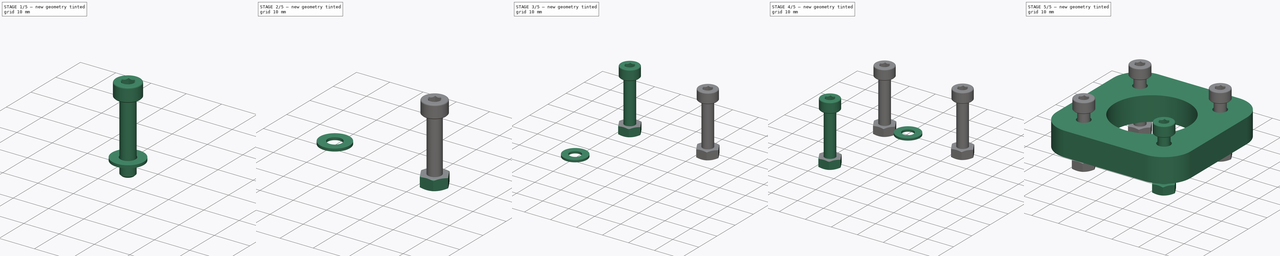
[diagram: build sequence overview — one tinted view per stage of 5, left to right]
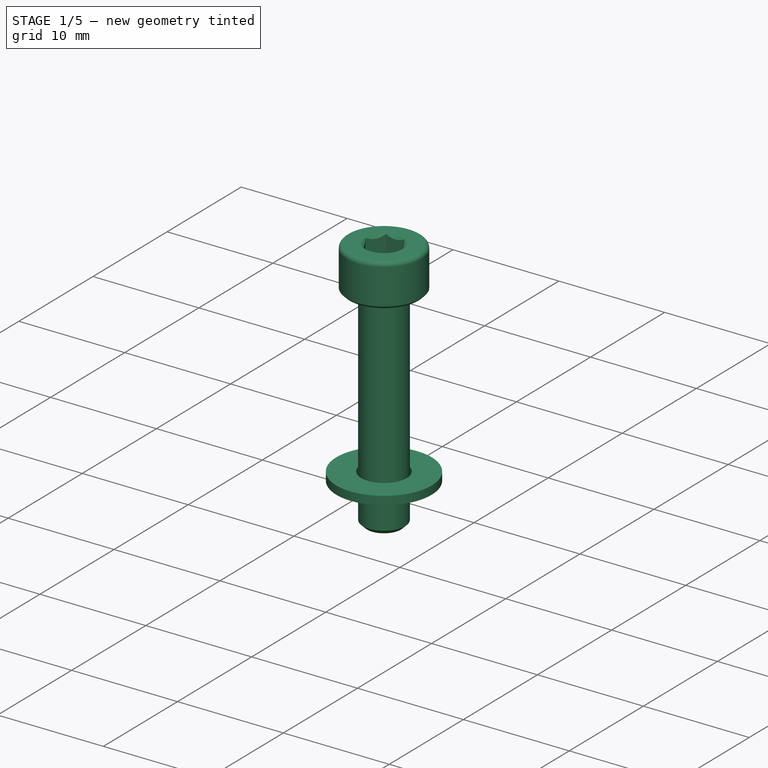
[diagram: stage 1 of 5 — iso view after this stage's code; geometry added in this stage tinted green]
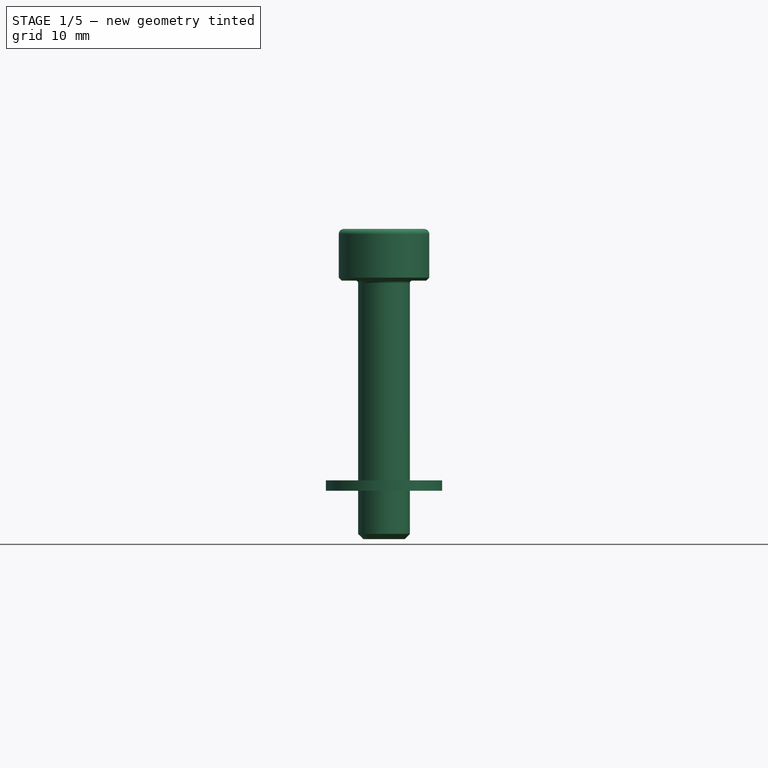
[diagram: stage 1 of 5 — front view after this stage's code; geometry added in this stage tinted green]
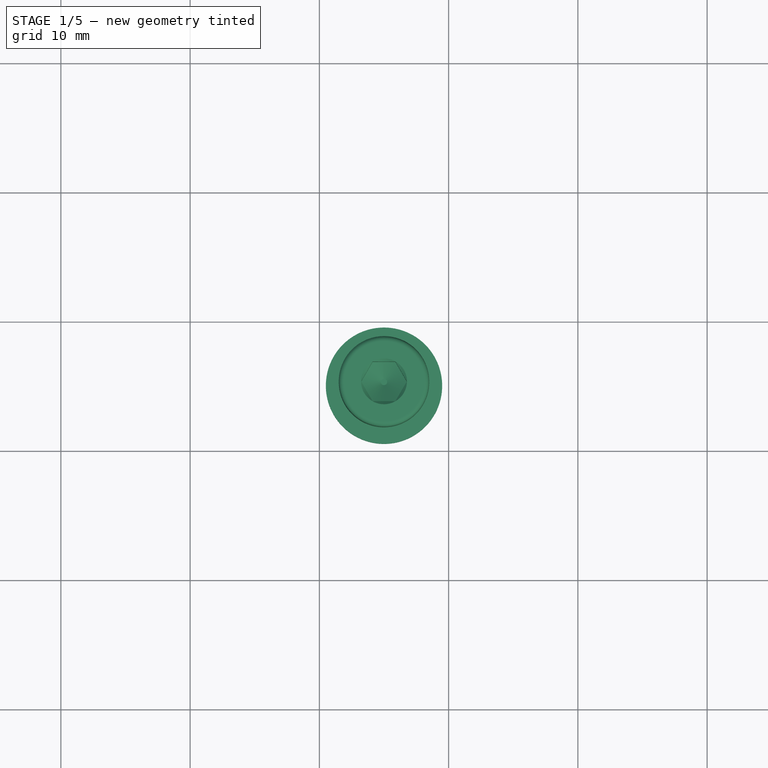
[diagram: stage 1 of 5 — top view after this stage's code; geometry added in this stage tinted green]
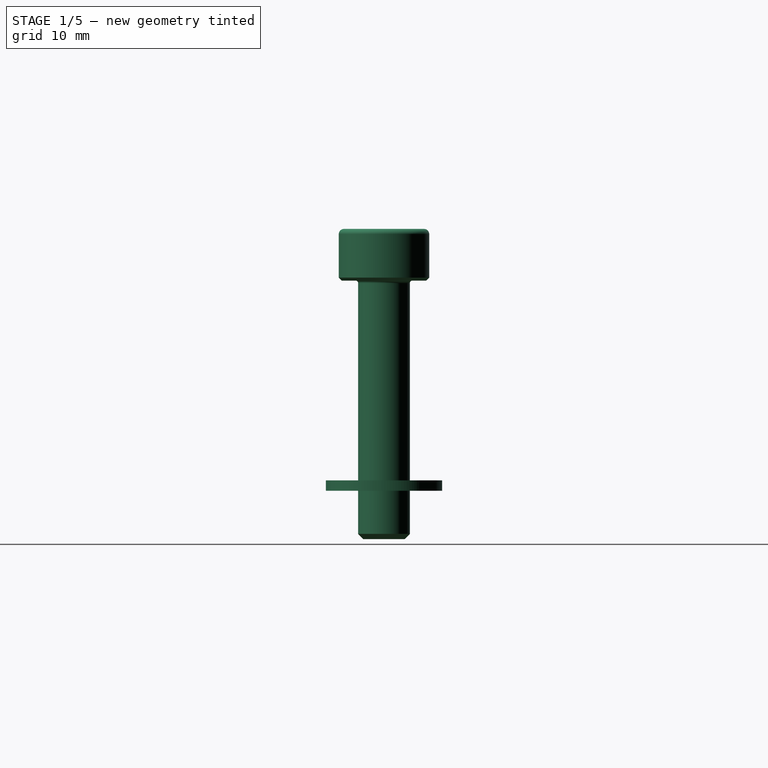
[diagram: stage 1 of 5 — right view after this stage's code; geometry added in this stage tinted green]
FCSTD DOCUMENT  (FreeCAD 0.20R29177 +426 (Git))
Label: RotationDriverMountingSpacer
License: All rights reserved
LicenseURL: http://en.wikipedia.org/wiki/All_rights_reserved
objects: Part::FeaturePython×16, App::DocumentObjectGroup×8, Sketcher::SketchObject×2, PartDesign::CoordinateSystem×1, App::FeaturePython×1, PartDesign::Pad×1, PartDesign::Hole×1, PartDesign::Body×1, App::Part×1
note: 24 computed .brp shape members not serialized (recipe doc carries the construction recipe); baked Part::Feature solids carry a one-line shape summary decoded from their .brp
EXTERNAL_REF file=Params.FCStd obj=Spreadsheet
EXTERNAL_REF file=Stepper17BracketFlat.FCStd obj=Pad

FEATURE [App::DocumentObjectGroup] Parts
FEATURE [PartDesign::CoordinateSystem] LCS_Origin
  AttacherType = Attacher::AttachEngine3D
  MapMode = 2
  Support = -> [X_Axis]
FEATURE [App::FeaturePython] Variables  # WARN: FeaturePython — macro-defined, semantics opaque (R4)
  BracketHoleSpacing = 30
  Type = App::PropertyContainer
FEATURE [App::DocumentObjectGroup] Constraints
FEATURE [App::DocumentObjectGroup] Configurations
FEATURE [Sketcher::SketchObject] Sketch
  FullyConstrained = true
  MapMode = 5
  Support = -> [XY_Plane001]
  expr: Constraints[26] = <<Variables>>.BracketHoleSpacing
  sketch-geometry (24):
    g0: LineSegment StartX=-15 StartY=-15 StartZ=0 EndX=-15 EndY=15 EndZ=0
    g1: LineSegment StartX=-15 StartY=15 StartZ=0 EndX=15 EndY=15 EndZ=0
    g2: LineSegment StartX=15 StartY=15 StartZ=0 EndX=15 EndY=-15 EndZ=0
    g3: LineSegment StartX=15 StartY=-15 StartZ=0 EndX=-15 EndY=-15 EndZ=0
    g4: GeomPoint X=0 Y=0 Z=0
    g5: ArcOfCircle CenterX=15 CenterY=15 CenterZ=0 NormalX=0 NormalY=0 NormalZ=1 AngleXU=0 Radius=2.15 StartAngle=0 EndAngle=3.14159
    g6: ArcOfCircle CenterX=15 CenterY=-15 CenterZ=0 NormalX=0 NormalY=0 NormalZ=1 AngleXU=0 Radius=2.15 StartAngle=3.14159 EndAngle=6.28319
    g7: LineSegment StartX=12.85 StartY=15 StartZ=0 EndX=12.85 EndY=-15 EndZ=0
    g8: LineSegment StartX=17.15 StartY=-15 StartZ=0 EndX=17.15 EndY=15 EndZ=0
    g9: ArcOfCircle CenterX=-15 CenterY=15 CenterZ=0 NormalX=0 NormalY=0 NormalZ=1 AngleXU=0 Radius=2.15 StartAngle=0 EndAngle=3.14159
    g10: ArcOfCircle CenterX=-15 CenterY=-15 CenterZ=0 NormalX=0 NormalY=0 NormalZ=1 AngleXU=0 Radius=2.15 StartAngle=3.14159 EndAngle=6.28319
    g11: LineSegment StartX=-17.15 StartY=15 StartZ=0 EndX=-17.15 EndY=-15 EndZ=0
    g12: LineSegment StartX=-12.85 StartY=-15 StartZ=0 EndX=-12.85 EndY=15 EndZ=0
    g13: ArcOfCircle CenterX=-15 CenterY=15 CenterZ=0 NormalX=0 NormalY=0 NormalZ=1 AngleXU=0 Radius=10 StartAngle=1.5708 EndAngle=3.14159
    g14: LineSegment StartX=-15 StartY=25 StartZ=0 EndX=15 EndY=25 EndZ=0
    g15: ArcOfCircle CenterX=15 CenterY=15 CenterZ=0 NormalX=0 NormalY=0 NormalZ=1 AngleXU=0 Radius=10 StartAngle=1e-16 EndAngle=1.5708
    g16: LineSegment StartX=25 StartY=15 StartZ=0 EndX=25 EndY=-15 EndZ=0
    g17: ArcOfCircle CenterX=15 CenterY=-15 CenterZ=0 NormalX=0 NormalY=0 NormalZ=1 AngleXU=0 Radius=10 StartAngle=4.71239 EndAngle=6.28319
    g18: LineSegment StartX=15 StartY=-25 StartZ=0 EndX=-15 EndY=-25 EndZ=0
    g19: ArcOfCircle CenterX=-15 CenterY=-15 CenterZ=0 NormalX=0 NormalY=0 NormalZ=1 AngleXU=0 Radius=10 StartAngle=3.14159 EndAngle=4.71239
    g20: LineSegment StartX=-25 StartY=-15 StartZ=0 EndX=-25 EndY=15 EndZ=0
    g21: GeomPoint X=-25 Y=25 Z=0
    g22: GeomPoint X=25 Y=-25 Z=0
    g23: Circle CenterX=0 CenterY=0 CenterZ=0 NormalX=0 NormalY=0 NormalZ=1 AngleXU=0 Radius=14
  constraints (52):
    c: Coincident(g0,g1)
    c: Coincident(g1,g2)
    c: Coincident(g2,g3)
    c: Coincident(g3,g0)
    c: Horizontal(g1)
    c: Horizontal(g3)
    c: Vertical(g0)
    c: Vertical(g2)
    c: Symmetric(g1,g0,g4)
    c: Coincident(g4,g-1)
    c: Tangent(g5,g7) = -1.5708
    c: Tangent(g7,g6) = -1.5708
    c: Tangent(g6,g8) = -1.5708
    c: Tangent(g8,g5) = -1.5708
    c: Equal(g5,g6)
    c: Coincident(g5,g1)
    c: Coincident(g6,g2)
    c: Tangent(g9,g11) = -1.5708
    c: Tangent(g11,g10) = -1.5708
    c: Tangent(g10,g12) = -1.5708
    c: Tangent(g12,g9) = -1.5708
    c: Equal(g9,g10)
    c: Coincident(g9,g0)
    c: Coincident(g10,g0)
    c: Equal(g5,g9)
    c: Diameter(g5) = 4.3
    c: DistanceX(g1,g1) = 30
    c: Equal(g2,g1)
    c: Tangent(g13,g14) = 1.5708
    c: Tangent(g14,g15) = 1.5708
    c: Tangent(g15,g16) = 1.5708
    c: Tangent(g16,g17) = 1.5708
    c: Tangent(g17,g18) = 1.5708
    c: Tangent(g18,g19) = 1.5708
    c: Tangent(g19,g20) = 1.5708
    c: Tangent(g20,g13) = 1.5708
    c: Horizontal(g14)
    c: Horizontal(g18)
    c: Vertical(g16)
    c: Vertical(g20)
    c: Equal(g13,g15)
    c: Equal(g15,g17)
    c: Equal(g17,g19)
    c: PointOnObject(g21,g14)
    c: PointOnObject(g21,g20)
    c: PointOnObject(g22,g16)
    c: PointOnObject(g22,g18)
    c: Coincident(g13,g9)
    c: Coincident(g17,g6)
    c: DistanceX(g13,g15) = 50
    c: Coincident(g23,g4)
    c: Diameter(g23) = 28
FEATURE [PartDesign::Pad] Pad
  Direction = (0,0,1)
  Length = 9
  Length2 = 10
  Profile = -> Sketch
  ReferenceAxis = -> Sketch [N_Axis]
  Type = 0
FEATURE [Part::FeaturePython] Screw003  label="M4x20-Screw012"  # Fasteners workbench fastener (typed FeaturePython)
  Placement = pos=(15,15,12.456) rot=(0,0,1;0rad)
  baseObject = -> Washer006 [Edge1]
  diameter = 5
  invert = false
  leftHanded = false
  length = 6
  lengthCustom = 20
  matchOuter = true
  offset = 0
  thread = false
  type = 34
FEATURE [Part::FeaturePython] Washer006  label="M4-Washer027"  # Fasteners workbench fastener (typed FeaturePython)
  Placement = pos=(15,15,11.656) rot=(0,0,1;0rad)
  baseObject = -> Sketch001 [Edge1]
  diameter = 5
  invert = false
  matchOuter = true
  offset = 11.656
  type = 3
  expr: offset = <<Pad>>.Length + <<Params>>#<<Params>>.SheetMetalThickness * 1mm
FEATURE [Part::FeaturePython] Washer007  label="M4-Washer028"  # Fasteners workbench fastener (typed FeaturePython)
  Placement = pos=(15,15,-3) rot=(1,0,0;3.14159rad)
  baseObject = -> Washer006 [Edge3]
  diameter = 5
  invert = true
  matchOuter = true
  offset = 14.656
  type = 3
  expr: offset = <<Pad>>.Length + <<Params>>#<<Params>>.SheetMetalThickness * 1mm + <<Stepper17BracketFlat>>#<<Pad>>.Length
FEATURE [App::DocumentObjectGroup] Hole004
  Group = -> [Screw003,Washer006,Washer007,Nut003]
FEATURE [App::DocumentObjectGroup] Fasteners
  Group = -> [Hole1,Hole002,Hole003,Hole004]
FEATURE [App::Part] Assembly
  AssemblyType = Part::Link
  Group = -> [LCS_Origin,Variables,Constraints,Configurations,Body,Fasteners,Washer,Screw,Washer001,Nut,Hole1,Washer002,Screw001,Washer003,Nut001,Hole002,Washer005,Nut002,Screw002,Washer004,Hole003,Washer007,Screw003,Nut003,Washer006,Hole004]
  Origin = -> Origin
  Type = Assembly
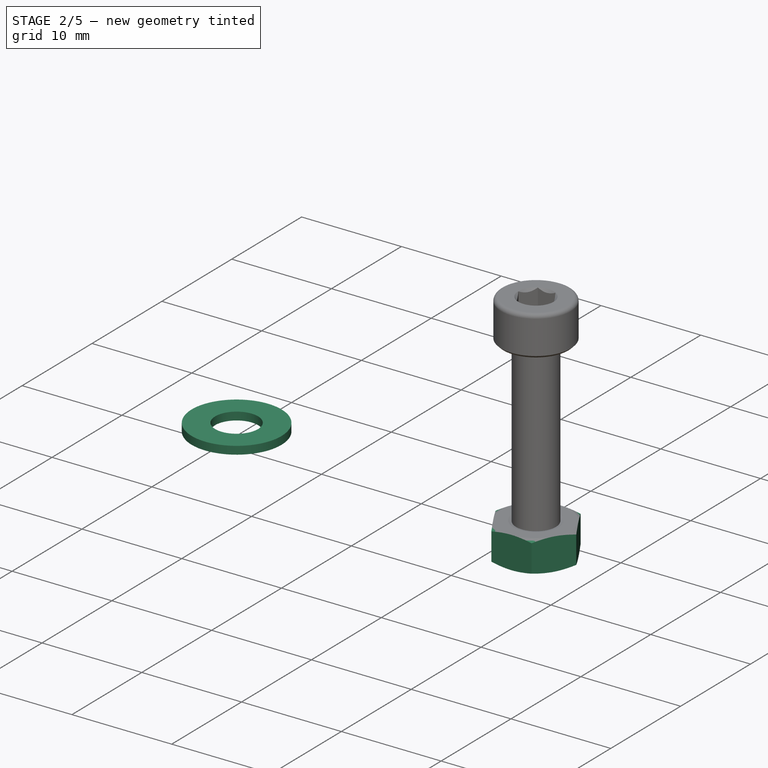
[diagram: stage 2 of 5 — iso view after this stage's code; geometry added in this stage tinted green]
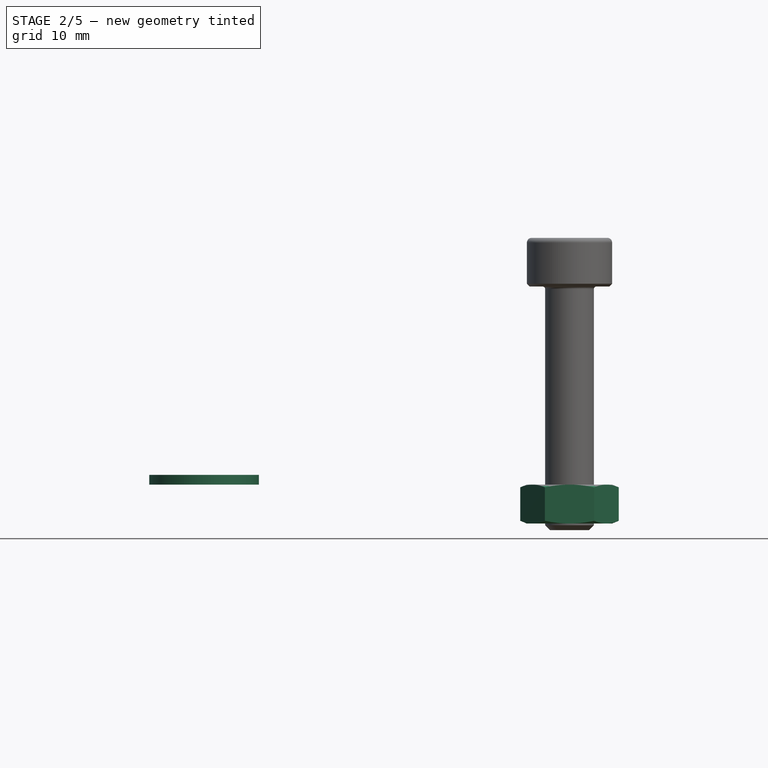
[diagram: stage 2 of 5 — front view after this stage's code; geometry added in this stage tinted green]
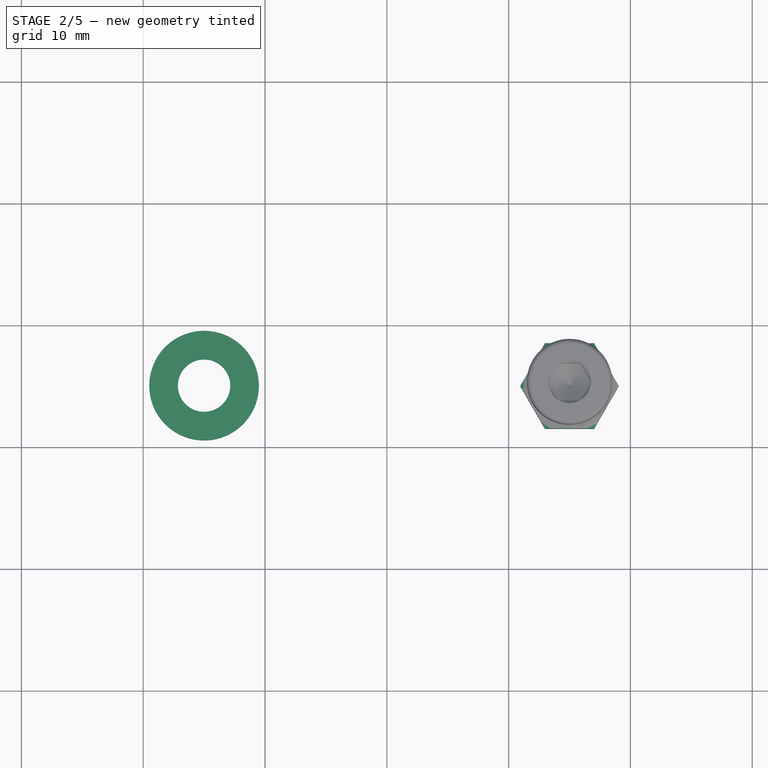
[diagram: stage 2 of 5 — top view after this stage's code; geometry added in this stage tinted green]
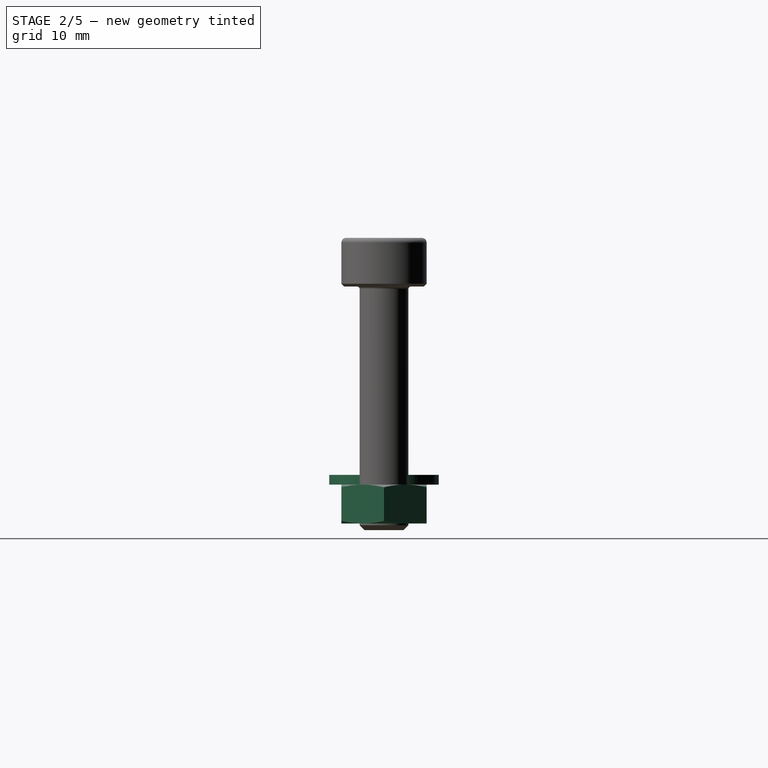
[diagram: stage 2 of 5 — right view after this stage's code; geometry added in this stage tinted green]
FEATURE [Part::FeaturePython] Washer004  label="M4-Washer025"  # Fasteners workbench fastener (typed FeaturePython)
  Placement = pos=(-15,15,11.656) rot=(0,0,1;0rad)
  baseObject = -> Sketch001 [Edge3]
  diameter = 5
  invert = false
  matchOuter = true
  offset = 11.656
  type = 3
  expr: offset = <<Pad>>.Length + <<Params>>#<<Params>>.SheetMetalThickness * 1mm
FEATURE [Part::FeaturePython] Washer005  label="M4-Washer026"  # Fasteners workbench fastener (typed FeaturePython)
  Placement = pos=(-15,15,-3) rot=(1,0,0;3.14159rad)
  baseObject = -> Washer004 [Edge3]
  diameter = 5
  invert = true
  matchOuter = true
  offset = 14.656
  type = 3
  expr: offset = <<Pad>>.Length + <<Params>>#<<Params>>.SheetMetalThickness * 1mm + <<Stepper17BracketFlat>>#<<Pad>>.Length
FEATURE [App::DocumentObjectGroup] Hole003
  Group = -> [Screw002,Washer004,Washer005,Nut002]
FEATURE [Part::FeaturePython] Nut003  label="M4-Nut012"  # Fasteners workbench fastener (typed FeaturePython)
  Placement = pos=(15,15,-3.8) rot=(1,0,0;3.14159rad)
  baseObject = -> Washer007 [Edge1]
  diameter = 6
  invert = false
  leftHanded = false
  matchOuter = true
  offset = 0
  thread = false
  type = 7
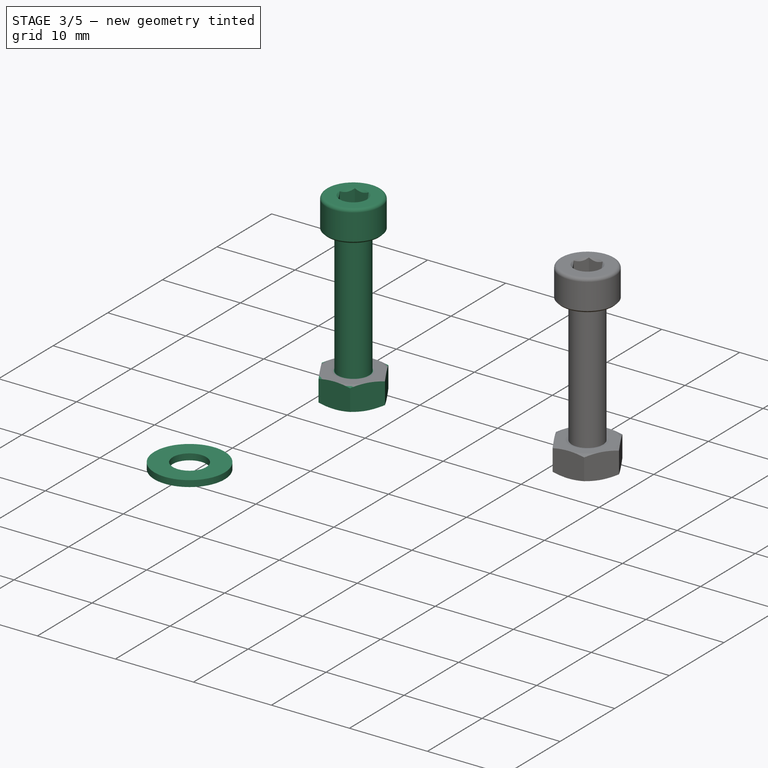
[diagram: stage 3 of 5 — iso view after this stage's code; geometry added in this stage tinted green]
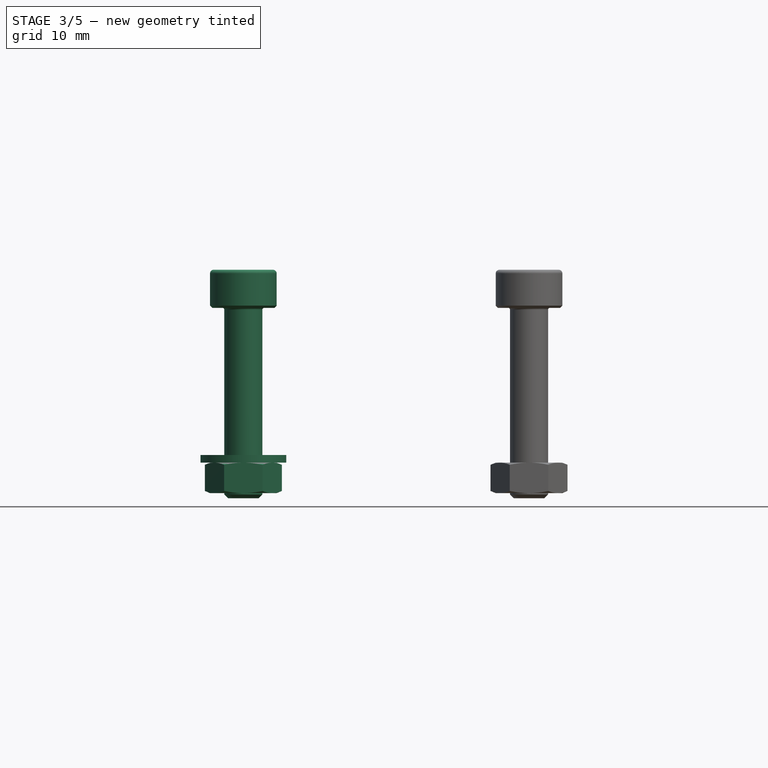
[diagram: stage 3 of 5 — front view after this stage's code; geometry added in this stage tinted green]
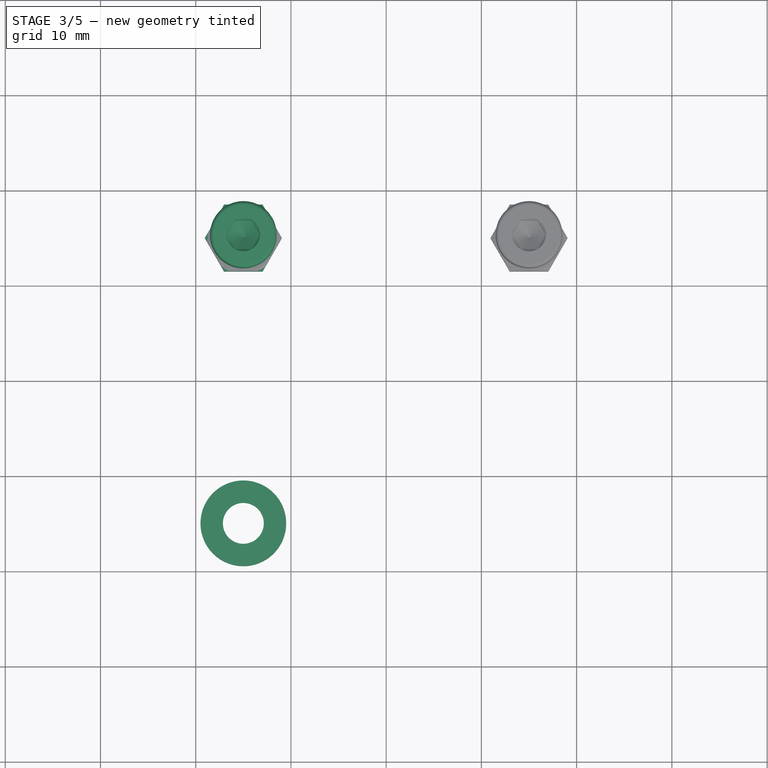
[diagram: stage 3 of 5 — top view after this stage's code; geometry added in this stage tinted green]
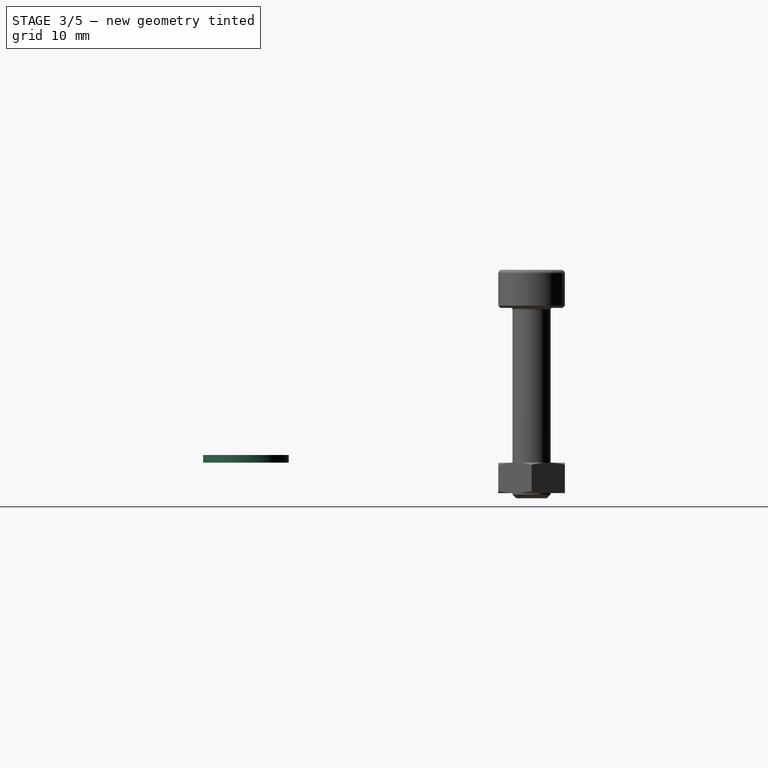
[diagram: stage 3 of 5 — right view after this stage's code; geometry added in this stage tinted green]
FEATURE [Part::FeaturePython] Washer002  label="M4-Washer023"  # Fasteners workbench fastener (typed FeaturePython)
  Placement = pos=(-15,-15,11.656) rot=(0,0,1;0rad)
  baseObject = -> Sketch001 [Edge4]
  diameter = 5
  invert = false
  matchOuter = true
  offset = 11.656
  type = 3
  expr: offset = <<Pad>>.Length + <<Params>>#<<Params>>.SheetMetalThickness * 1mm
FEATURE [Part::FeaturePython] Washer003  label="M4-Washer024"  # Fasteners workbench fastener (typed FeaturePython)
  Placement = pos=(-15,-15,-3) rot=(1,0,0;3.14159rad)
  baseObject = -> Washer002 [Edge3]
  diameter = 5
  invert = true
  matchOuter = true
  offset = 14.656
  type = 3
  expr: offset = <<Pad>>.Length + <<Params>>#<<Params>>.SheetMetalThickness * 1mm + <<Stepper17BracketFlat>>#<<Pad>>.Length
FEATURE [App::DocumentObjectGroup] Hole002
  Group = -> [Screw001,Washer002,Washer003,Nut001]
FEATURE [Part::FeaturePython] Nut002  label="M4-Nut011"  # Fasteners workbench fastener (typed FeaturePython)
  Placement = pos=(-15,15,-3.8) rot=(1,0,0;3.14159rad)
  baseObject = -> Washer005 [Edge1]
  diameter = 6
  invert = false
  leftHanded = false
  matchOuter = true
  offset = 0
  thread = false
  type = 7
FEATURE [Part::FeaturePython] Screw002  label="M4x20-Screw011"  # Fasteners workbench fastener (typed FeaturePython)
  Placement = pos=(-15,15,12.456) rot=(0,0,1;0rad)
  baseObject = -> Washer004 [Edge1]
  diameter = 5
  invert = false
  leftHanded = false
  length = 6
  lengthCustom = 20
  matchOuter = true
  offset = 0
  thread = false
  type = 34
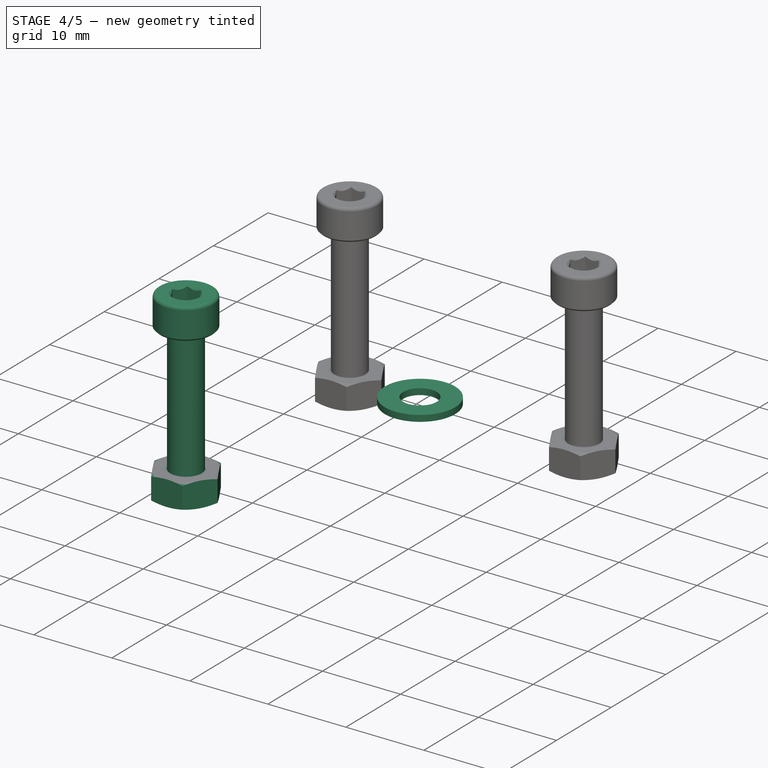
[diagram: stage 4 of 5 — iso view after this stage's code; geometry added in this stage tinted green]
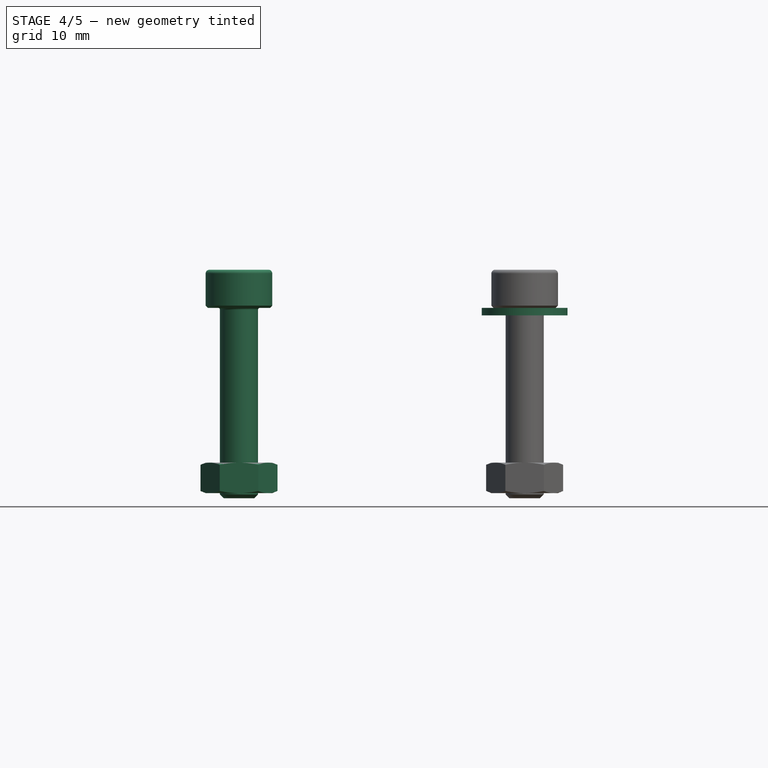
[diagram: stage 4 of 5 — front view after this stage's code; geometry added in this stage tinted green]
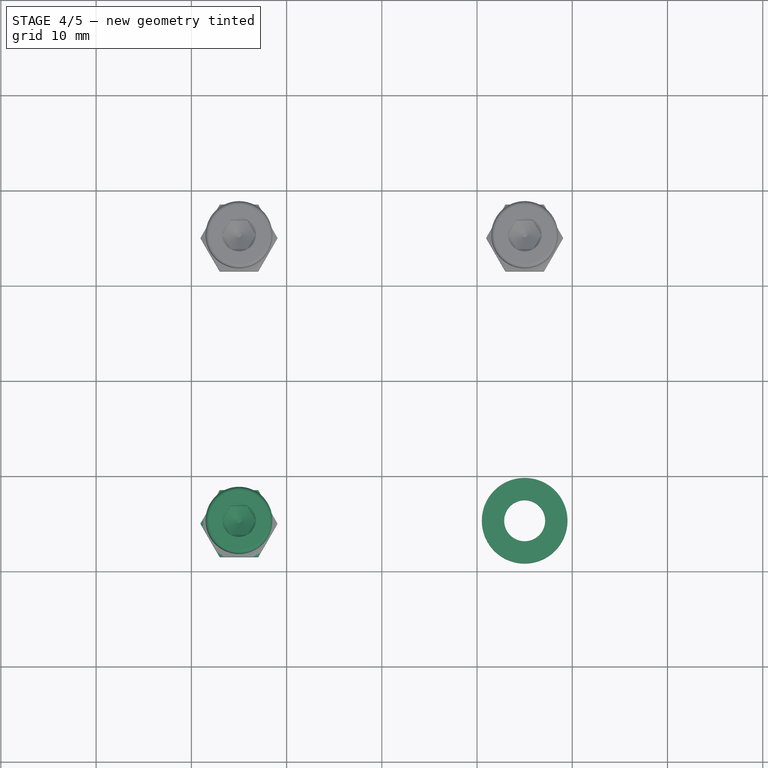
[diagram: stage 4 of 5 — top view after this stage's code; geometry added in this stage tinted green]
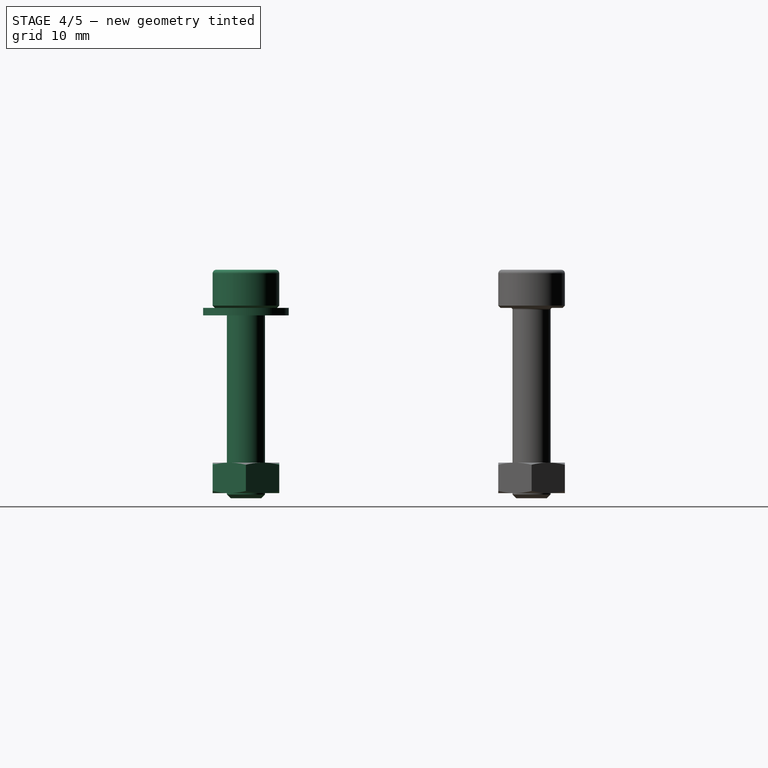
[diagram: stage 4 of 5 — right view after this stage's code; geometry added in this stage tinted green]
FEATURE [PartDesign::Body] Body
  Group = -> [Sketch,Pad,Sketch001,Hole]
  Origin = -> Origin001
  Tip = -> Hole
FEATURE [Part::FeaturePython] Washer  label="M4-Washer"  # Fasteners workbench fastener (typed FeaturePython)
  Placement = pos=(15,-15,11.656) rot=(0,0,1;0rad)
  baseObject = -> Sketch001 [Edge2]
  diameter = 5
  invert = false
  matchOuter = true
  offset = 11.656
  type = 3
  expr: offset = <<Pad>>.Length + <<Params>>#<<Params>>.SheetMetalThickness * 1mm
FEATURE [App::DocumentObjectGroup] Hole1
  Group = -> [Screw,Washer,Washer001,Nut]
FEATURE [Part::FeaturePython] Nut001  label="M4-Nut010"  # Fasteners workbench fastener (typed FeaturePython)
  Placement = pos=(-15,-15,-3.8) rot=(1,0,0;3.14159rad)
  baseObject = -> Washer003 [Edge1]
  diameter = 6
  invert = false
  leftHanded = false
  matchOuter = true
  offset = 0
  thread = false
  type = 7
FEATURE [Part::FeaturePython] Screw001  label="M4x20-Screw010"  # Fasteners workbench fastener (typed FeaturePython)
  Placement = pos=(-15,-15,12.456) rot=(0,0,1;0rad)
  baseObject = -> Washer002 [Edge1]
  diameter = 5
  invert = false
  leftHanded = false
  length = 6
  lengthCustom = 20
  matchOuter = true
  offset = 0
  thread = false
  type = 34
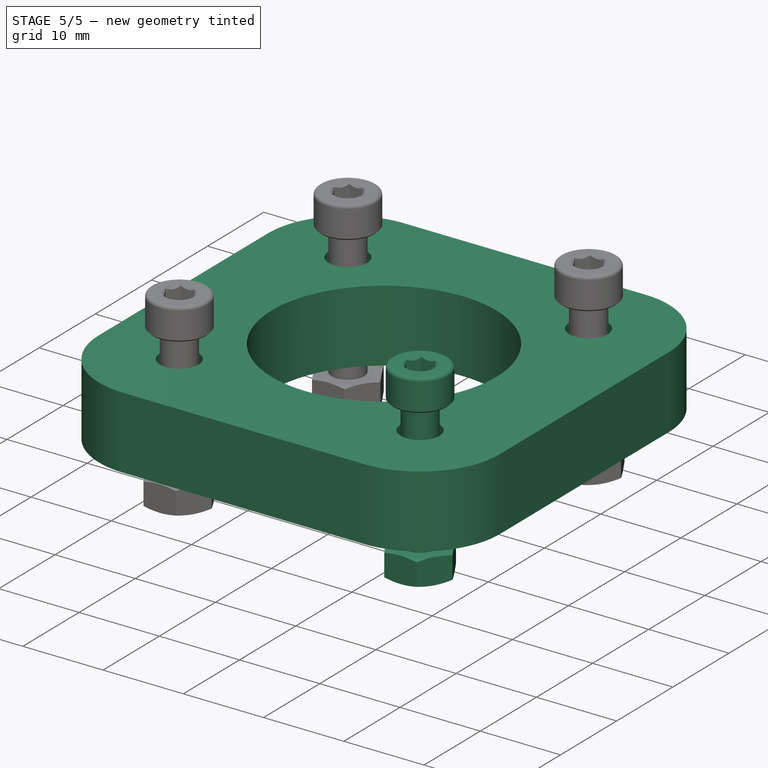
[diagram: stage 5 of 5 — iso view after this stage's code; geometry added in this stage tinted green]
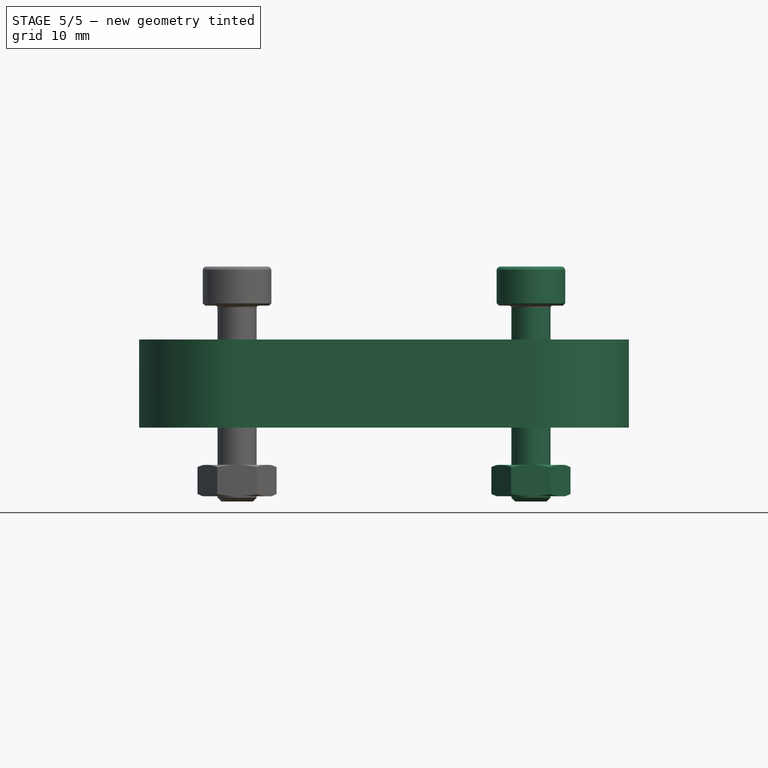
[diagram: stage 5 of 5 — front view after this stage's code; geometry added in this stage tinted green]
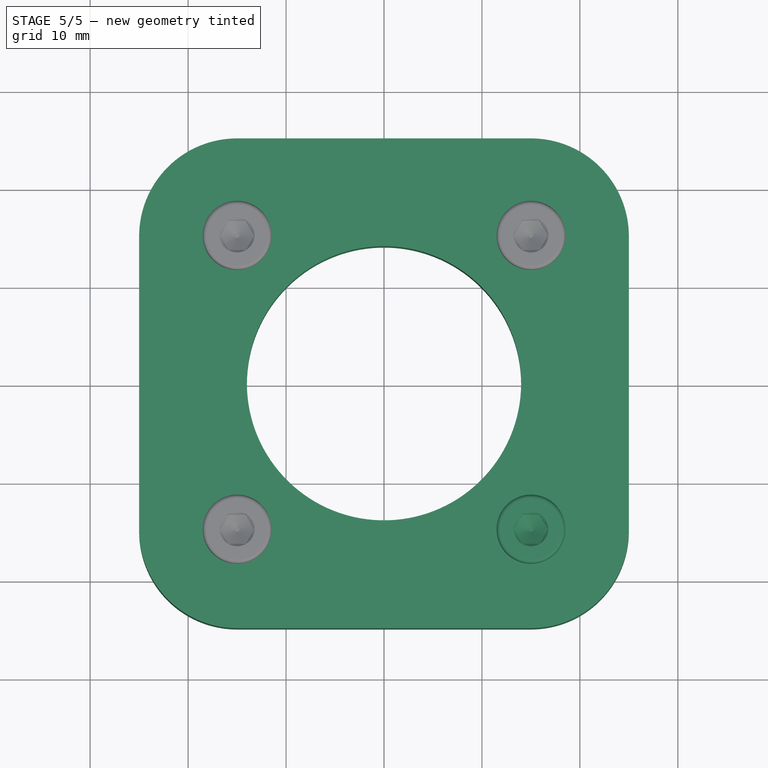
[diagram: stage 5 of 5 — top view after this stage's code; geometry added in this stage tinted green]
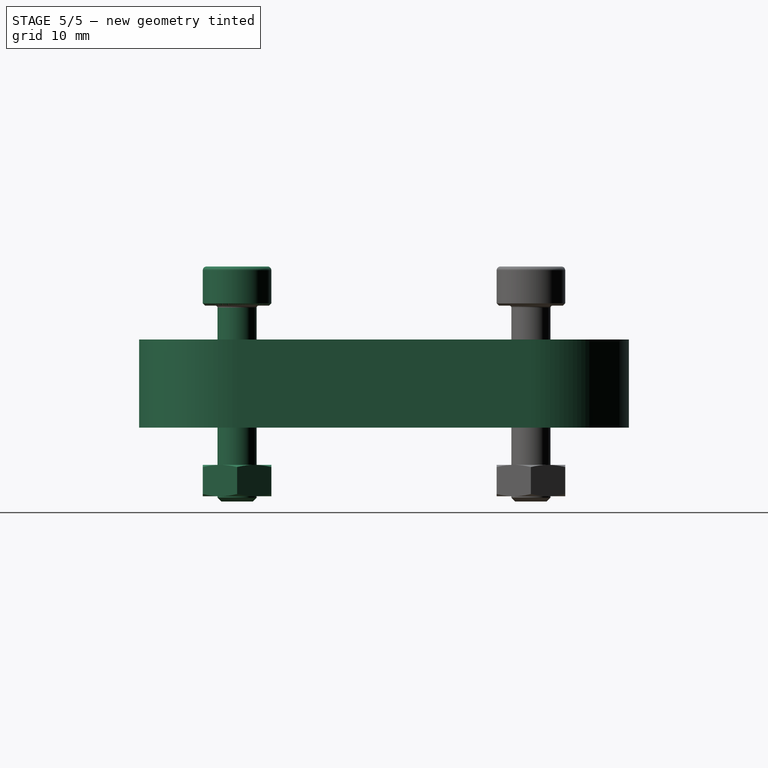
[diagram: stage 5 of 5 — right view after this stage's code; geometry added in this stage tinted green]
FEATURE [Sketcher::SketchObject] Sketch001
  FullyConstrained = true
  MapMode = 5
  Support = -> [XY_Plane001]
  sketch-geometry (9):
    g0: LineSegment StartX=-15 StartY=-15 StartZ=0 EndX=-15 EndY=15 EndZ=0
    g1: LineSegment StartX=-15 StartY=15 StartZ=0 EndX=15 EndY=15 EndZ=0
    g2: LineSegment StartX=15 StartY=15 StartZ=0 EndX=15 EndY=-15 EndZ=0
    g3: LineSegment StartX=15 StartY=-15 StartZ=0 EndX=-15 EndY=-15 EndZ=0
    g4: GeomPoint X=0 Y=0 Z=0
    g5: Circle CenterX=15 CenterY=15 CenterZ=0 NormalX=0 NormalY=0 NormalZ=1 AngleXU=0 Radius=1
    g6: Circle CenterX=15 CenterY=-15 CenterZ=0 NormalX=0 NormalY=0 NormalZ=1 AngleXU=0 Radius=1
    g7: Circle CenterX=-15 CenterY=15 CenterZ=0 NormalX=0 NormalY=0 NormalZ=1 AngleXU=0 Radius=1
    g8: Circle CenterX=-15 CenterY=-15 CenterZ=0 NormalX=0 NormalY=0 NormalZ=1 AngleXU=0 Radius=1
  constraints (20):
    c: Coincident(g0,g1)
    c: Coincident(g1,g2)
    c: Coincident(g2,g3)
    c: Coincident(g3,g0)
    c: Horizontal(g1)
    c: Horizontal(g3)
    c: Vertical(g0)
    c: Vertical(g2)
    c: Symmetric(g1,g0,g4)
    c: Coincident(g4,g-1)
    c: DistanceX(g1,g1) = 30
    c: Equal(g2,g1)
    c: Coincident(g5,g1)
    c: Coincident(g6,g2)
    c: Coincident(g7,g0)
    c: Coincident(g8,g0)
    c: Equal(g8,g6)
    c: Equal(g6,g5)
    c: Equal(g5,g7)
    c: Diameter(g5) = 2
FEATURE [PartDesign::Hole] Hole  label="BracketMountHoles"
  BaseFeature = -> Pad
  CustomThreadClearance = 0
  Depth = 143.988
  DepthType = 1
  Diameter = 4.8
  DrillForDepth = false
  DrillPoint = 1
  DrillPointAngle = 118
  HoleCutCountersinkAngle = 90
  HoleCutCustomValues = false
  HoleCutDepth = 0
  HoleCutDiameter = 6.1
  HoleCutType = 0
  ModelThread = false
  Profile = -> Sketch001
  Reversed = true
  Tapered = false
  TaperedAngle = 90
  ThreadClass = 0
  ThreadDepth = 143.988
  ThreadDepthType = 0
  ThreadDirection = 0
  ThreadFit = 2
  ThreadSize = 0
  ThreadType = 0
  Threaded = false
  UseCustomThreadClearance = false
FEATURE [Part::FeaturePython] Screw  label="M4x20-Screw"  # Fasteners workbench fastener (typed FeaturePython)
  Placement = pos=(15,-15,12.456) rot=(0,0,1;0rad)
  baseObject = -> Washer [Edge1]
  diameter = 5
  invert = false
  leftHanded = false
  length = 6
  lengthCustom = 20
  matchOuter = true
  offset = 0
  thread = false
  type = 34
FEATURE [Part::FeaturePython] Washer001  label="M4-Washer022"  # Fasteners workbench fastener (typed FeaturePython)
  Placement = pos=(15,-15,-3) rot=(1,0,0;3.14159rad)
  baseObject = -> Washer [Edge3]
  diameter = 5
  invert = true
  matchOuter = true
  offset = 14.656
  type = 3
  expr: offset = <<Pad>>.Length + <<Params>>#<<Params>>.SheetMetalThickness * 1mm + <<Stepper17BracketFlat>>#<<Pad>>.Length
FEATURE [Part::FeaturePython] Nut  label="M4-Nut"  # Fasteners workbench fastener (typed FeaturePython)
  Placement = pos=(15,-15,-3.8) rot=(1,0,0;3.14159rad)
  baseObject = -> Washer001 [Edge1]
  diameter = 6
  invert = false
  leftHanded = false
  matchOuter = true
  offset = 0
  thread = false
  type = 7
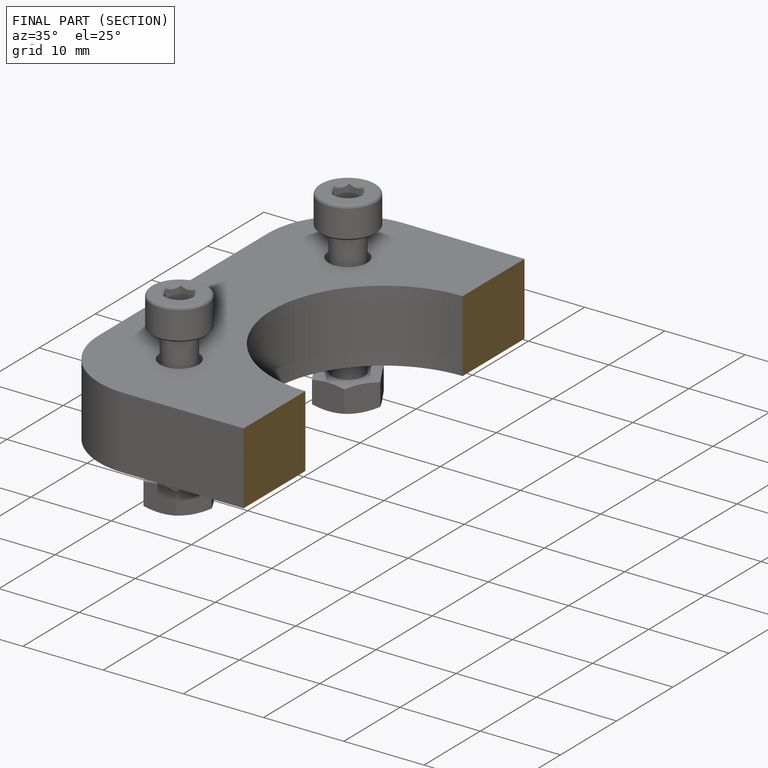
[diagram: finished part — half-section view (interior)]
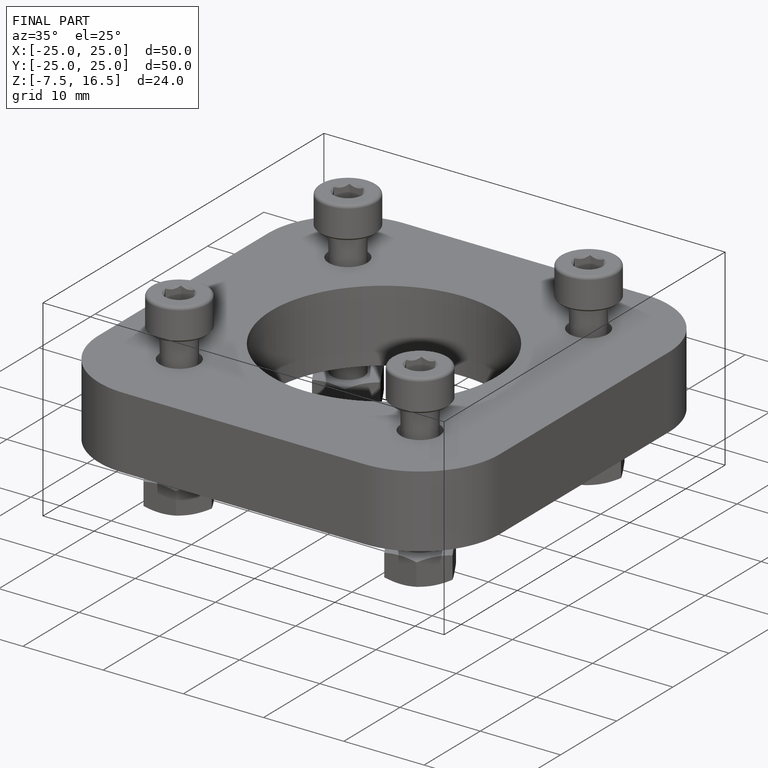
[diagram: finished part — iso view with bounding-box wireframe]
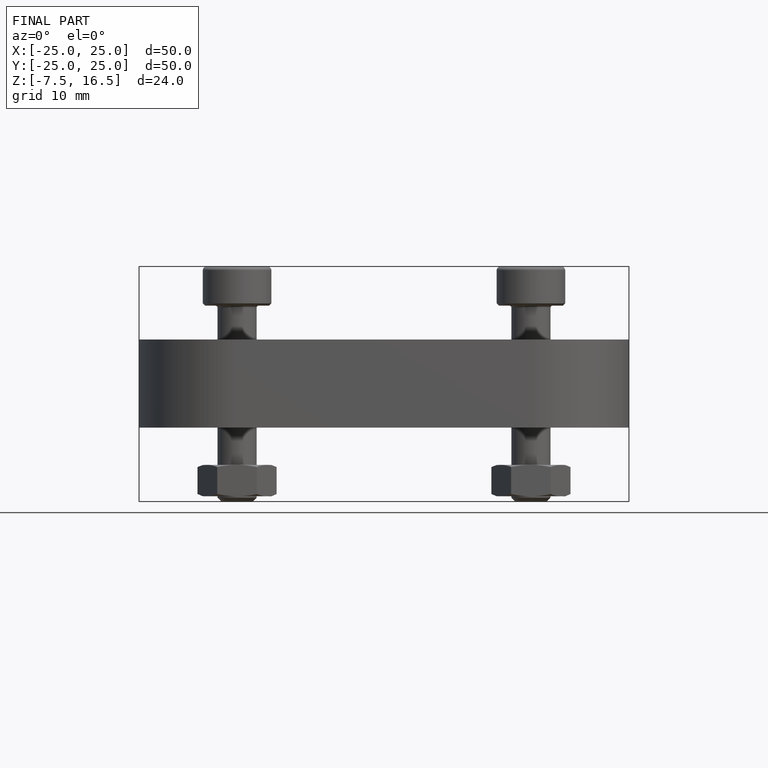
[diagram: finished part — front view with bounding-box wireframe]
